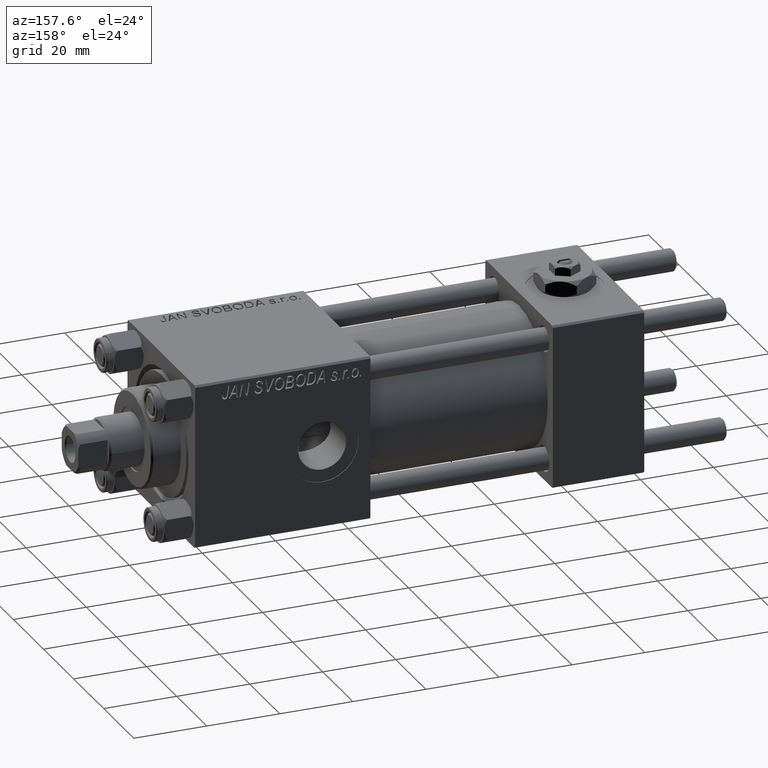
[diagram: clean part render]
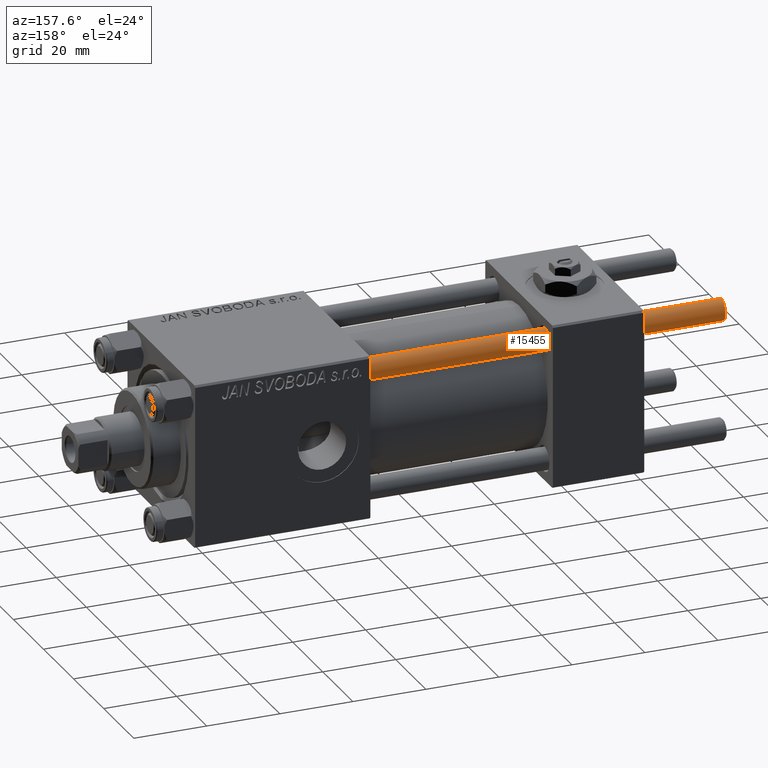
[diagram: same view with one face highlighted and labeled with its STEP entity id]
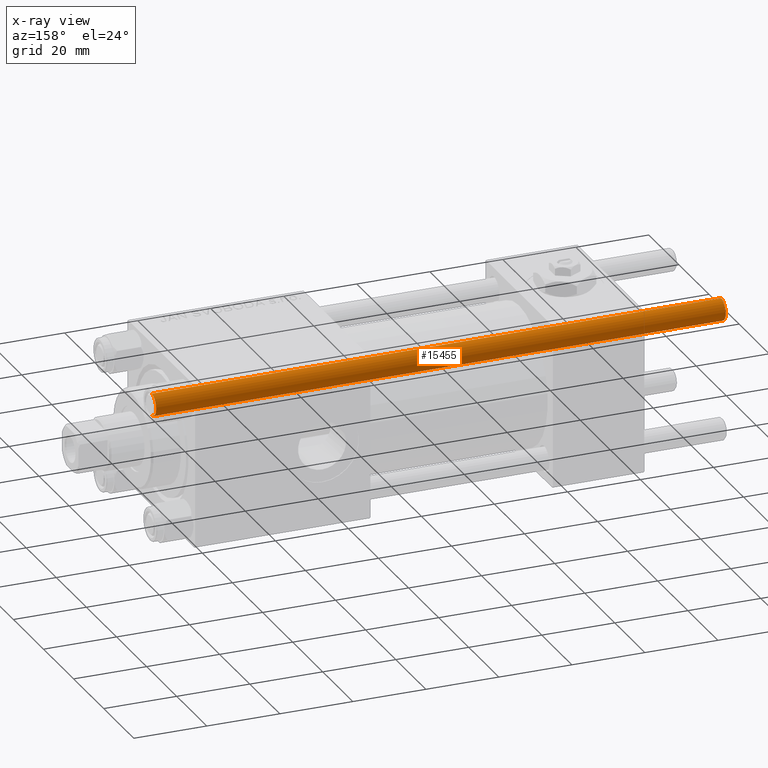
[diagram: x-ray of the same camera — body ghosted, the highlighted face saturated]
A machine part, auxiliary view. The second image highlights one B-rep face of the part: STEP entity #15455.
The next image is the same camera in x-ray: the body ghosted, the highlighted face saturated — about 0% of this face is hidden behind the body in this view.
In plain terms, the highlighted cylindrical surface (edge-blend (fillet) strip) has radius 3 mm, axis along (-1, -0, -0).
Its self-contained STEP definition (entity closure, byte-faithful):
#2311 = CARTESIAN_POINT ( 'NONE',  ( 0.000000000000000000, 0.000000000000000000, 157.0000000000000000 ) ) ;
#2970 = CIRCLE ( 'NONE', #22137, 3.000000000000000444 ) ;
#3334 = DIRECTION ( 'NONE',  ( -0.000000000000000000, -0.000000000000000000, -1.000000000000000000 ) ) ;
#3775 = EDGE_CURVE ( 'NONE', #20140, #32917, #39085, .T. ) ;
#5937 = ORIENTED_EDGE ( 'NONE', *, *, #50941, .T. ) ;
#6472 = ORIENTED_EDGE ( 'NONE', *, *, #23416, .F. ) ;
#6488 = CYLINDRICAL_SURFACE ( 'NONE', #19664, 3.000000000000000444 ) ;
#6580 = CARTESIAN_POINT ( 'NONE',  ( 0.000000000000000000, 0.000000000000000000, 156.5000000000000284 ) ) ;
#9928 = VECTOR ( 'NONE', #36846, 1000.000000000000000 ) ;
#11876 = ORIENTED_EDGE ( 'NONE', *, *, #13911, .T. ) ;
#13357 = CARTESIAN_POINT ( 'NONE',  ( -3.000000000000000444, 0.000000000000000000, 157.0000000000000000 ) ) ;
#13911 = EDGE_CURVE ( 'NONE', #44484, #20140, #2970, .T. ) ;
#14361 = CARTESIAN_POINT ( 'NONE',  ( -3.000000000000000444, 0.000000000000000000, 156.5000000000000284 ) ) ;
#15455 = ADVANCED_FACE ( 'NONE', ( #38057 ), #6488, .T. ) ;
#16474 = CIRCLE ( 'NONE', #47251, 3.000000000000000444 ) ;
#18222 = DIRECTION ( 'NONE',  ( -0.000000000000000000, -0.000000000000000000, -1.000000000000000000 ) ) ;
#19664 = AXIS2_PLACEMENT_3D ( 'NONE', #2311, #18222, #22899 ) ;
#19885 = CARTESIAN_POINT ( 'NONE',  ( 0.000000000000000000, 0.000000000000000000, 0.4999999999999726885 ) ) ;
#20140 = VERTEX_POINT ( 'NONE', #31630 ) ;
#22137 = AXIS2_PLACEMENT_3D ( 'NONE', #6580, #42053, #26399 ) ;
#22899 = DIRECTION ( 'NONE',  ( -1.000000000000000000, 0.000000000000000000, 0.000000000000000000 ) ) ;
#23416 = EDGE_CURVE ( 'NONE', #44484, #41917, #49101, .T. ) ;
#23799 = DIRECTION ( 'NONE',  ( -0.000000000000000000, -0.000000000000000000, 1.000000000000000000 ) ) ;
#24168 = ORIENTED_EDGE ( 'NONE', *, *, #3775, .T. ) ;
#24369 = VECTOR ( 'NONE', #3334, 1000.000000000000000 ) ;
#26399 = DIRECTION ( 'NONE',  ( 1.000000000000000000, 0.000000000000000000, 0.000000000000000000 ) ) ;
#31630 = CARTESIAN_POINT ( 'NONE',  ( 3.000000000000000444, 3.673940397442060361E-16, 156.5000000000000284 ) ) ;
#32917 = VERTEX_POINT ( 'NONE', #34356 ) ;
#34356 = CARTESIAN_POINT ( 'NONE',  ( 3.000000000000000444, 3.673940397442060361E-16, 0.4999999999999726885 ) ) ;
#36846 = DIRECTION ( 'NONE',  ( -0.000000000000000000, -0.000000000000000000, -1.000000000000000000 ) ) ;
#38057 = FACE_OUTER_BOUND ( 'NONE', #49422, .T. ) ;
#38584 = CARTESIAN_POINT ( 'NONE',  ( 3.000000000000000444, 3.673940397442060361E-16, 157.0000000000000000 ) ) ;
#39085 = LINE ( 'NONE', #38584, #24369 ) ;
#39969 = DIRECTION ( 'NONE',  ( 1.000000000000000000, 0.000000000000000000, 0.000000000000000000 ) ) ;
#41917 = VERTEX_POINT ( 'NONE', #51077 ) ;
#42053 = DIRECTION ( 'NONE',  ( 0.000000000000000000, 0.000000000000000000, -1.000000000000000000 ) ) ;
#44484 = VERTEX_POINT ( 'NONE', #14361 ) ;
#47251 = AXIS2_PLACEMENT_3D ( 'NONE', #19885, #23799, #39969 ) ;
#49101 = LINE ( 'NONE', #13357, #9928 ) ;
#49422 = EDGE_LOOP ( 'NONE', ( #11876, #24168, #5937, #6472 ) ) ;
#50941 = EDGE_CURVE ( 'NONE', #32917, #41917, #16474, .T. ) ;
#51077 = CARTESIAN_POINT ( 'NONE',  ( -3.000000000000000444, 0.000000000000000000, 0.4999999999999726885 ) ) ;